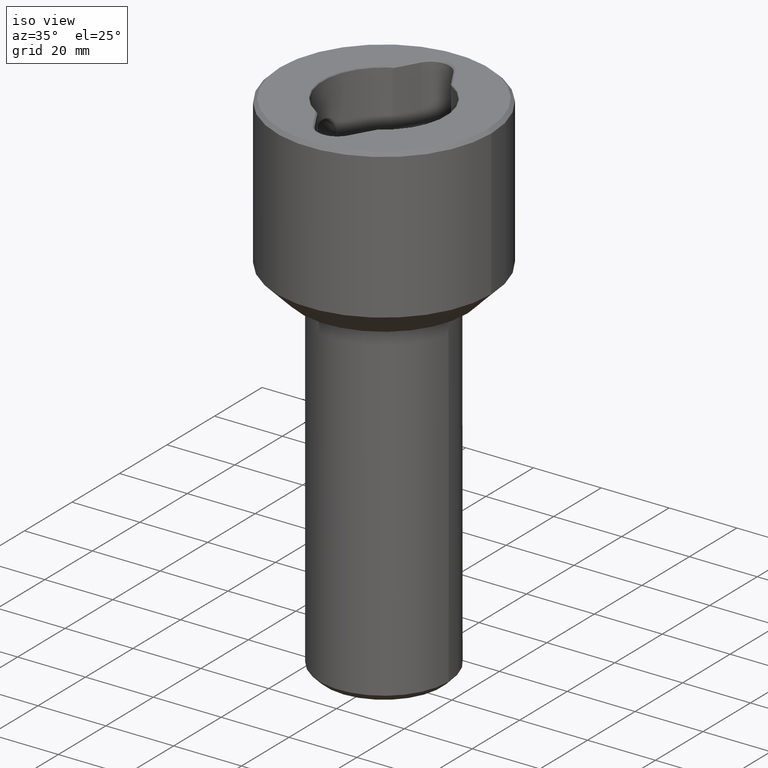
[diagram: clean part render]
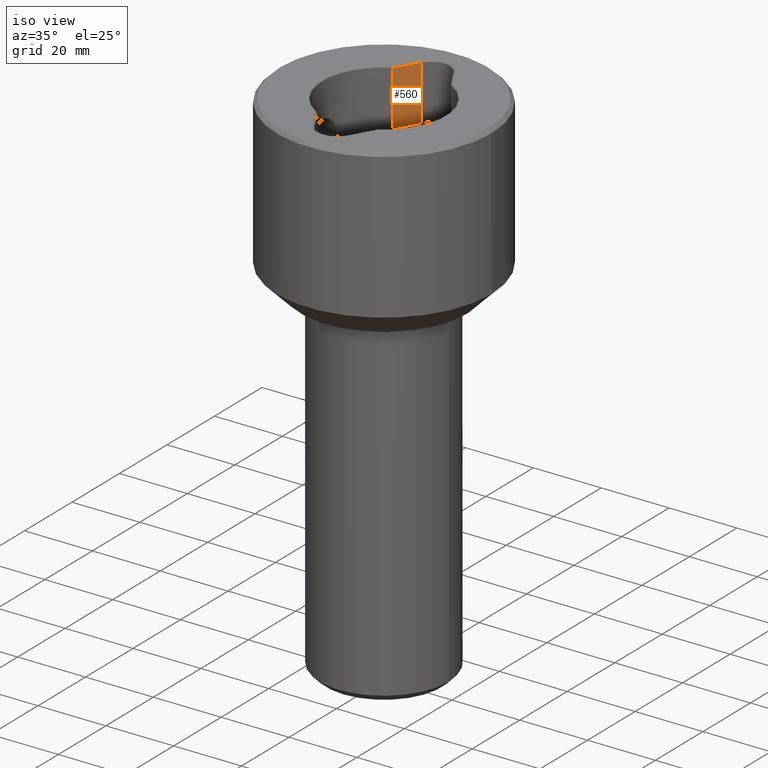
[diagram: same view with one face highlighted and labeled with its STEP entity id]
A machine part, iso view. The second image highlights one B-rep face of the part: STEP entity #560.
In plain terms, the highlighted planar face has unit normal (-0.866, 0.5, 0).
Its self-contained STEP definition (entity closure, byte-faithful):
#35 = ORIENTED_EDGE ( 'NONE', *, *, #115, .T. ) ;
#51 = VERTEX_POINT ( 'NONE', #770 ) ;
#115 = EDGE_CURVE ( 'NONE', #1458, #720, #588, .T. ) ;
#126 = ORIENTED_EDGE ( 'NONE', *, *, #507, .F. ) ;
#160 = PLANE ( 'NONE',  #963 ) ;
#164 = VECTOR ( 'NONE', #1377, 999.9999999999998863 ) ;
#243 = EDGE_LOOP ( 'NONE', ( #35, #877, #126, #1554 ) ) ;
#280 = CARTESIAN_POINT ( 'NONE',  ( -4.763139720814428379, 22.45000000000002061, -0.4000000000568514347 ) ) ;
#423 = VECTOR ( 'NONE', #1429, 1000.000000000000000 ) ;
#431 = DIRECTION ( 'NONE',  ( -0.4999999999999977796, -0.8660254037844399289, 0.0000000000000000000 ) ) ;
#507 = EDGE_CURVE ( 'NONE', #1527, #51, #1385, .T. ) ;
#511 = EDGE_CURVE ( 'NONE', #1458, #1527, #728, .T. ) ;
#522 = LINE ( 'NONE', #1637, #164 ) ;
#533 = CARTESIAN_POINT ( 'NONE',  ( -4.763139720814428379, 22.45000000000002061, -16.60000000005684484 ) ) ;
#560 = ADVANCED_FACE ( 'NONE', ( #744 ), #160, .F. ) ;
#588 = LINE ( 'NONE', #533, #1513 ) ;
#614 = CARTESIAN_POINT ( 'NONE',  ( -4.763139720814428379, 22.45000000000002061, -16.60000000005684484 ) ) ;
#682 = CARTESIAN_POINT ( 'NONE',  ( -8.593024545601725350, 15.81644489633135819, -16.60000000005684484 ) ) ;
#697 = DIRECTION ( 'NONE',  ( -0.4999999999999977796, -0.8660254037844399289, 0.0000000000000000000 ) ) ;
#720 = VERTEX_POINT ( 'NONE', #280 ) ;
#728 = LINE ( 'NONE', #1453, #1080 ) ;
#744 = FACE_OUTER_BOUND ( 'NONE', #243, .T. ) ;
#770 = CARTESIAN_POINT ( 'NONE',  ( -8.593024545601725350, 15.81644489633135819, -0.4000000000568514347 ) ) ;
#877 = ORIENTED_EDGE ( 'NONE', *, *, #883, .T. ) ;
#883 = EDGE_CURVE ( 'NONE', #720, #51, #522, .T. ) ;
#963 = AXIS2_PLACEMENT_3D ( 'NONE', #1562, #1070, #431 ) ;
#985 = CARTESIAN_POINT ( 'NONE',  ( -8.593024545601725350, 15.81644489633135819, -16.60000000005684484 ) ) ;
#1070 = DIRECTION ( 'NONE',  ( -0.8660254037844399289, 0.4999999999999977796, 0.0000000000000000000 ) ) ;
#1080 = VECTOR ( 'NONE', #697, 1000.000000000000227 ) ;
#1377 = DIRECTION ( 'NONE',  ( -0.4999999999999978351, -0.8660254037844399289, 0.0000000000000000000 ) ) ;
#1385 = LINE ( 'NONE', #682, #423 ) ;
#1429 = DIRECTION ( 'NONE',  ( -0.0000000000000000000, -0.0000000000000000000, 1.000000000000000000 ) ) ;
#1453 = CARTESIAN_POINT ( 'NONE',  ( -4.763139720814428379, 22.45000000000002061, -16.60000000005684484 ) ) ;
#1458 = VERTEX_POINT ( 'NONE', #614 ) ;
#1513 = VECTOR ( 'NONE', #1538, 1000.000000000000000 ) ;
#1527 = VERTEX_POINT ( 'NONE', #985 ) ;
#1538 = DIRECTION ( 'NONE',  ( -0.0000000000000000000, -0.0000000000000000000, 1.000000000000000000 ) ) ;
#1554 = ORIENTED_EDGE ( 'NONE', *, *, #511, .F. ) ;
#1562 = CARTESIAN_POINT ( 'NONE',  ( -4.763139720814428379, 22.45000000000002061, -16.60000000005684484 ) ) ;
#1637 = CARTESIAN_POINT ( 'NONE',  ( -8.456277792446886821, 16.05329722056561792, -0.4000000000568441627 ) ) ;